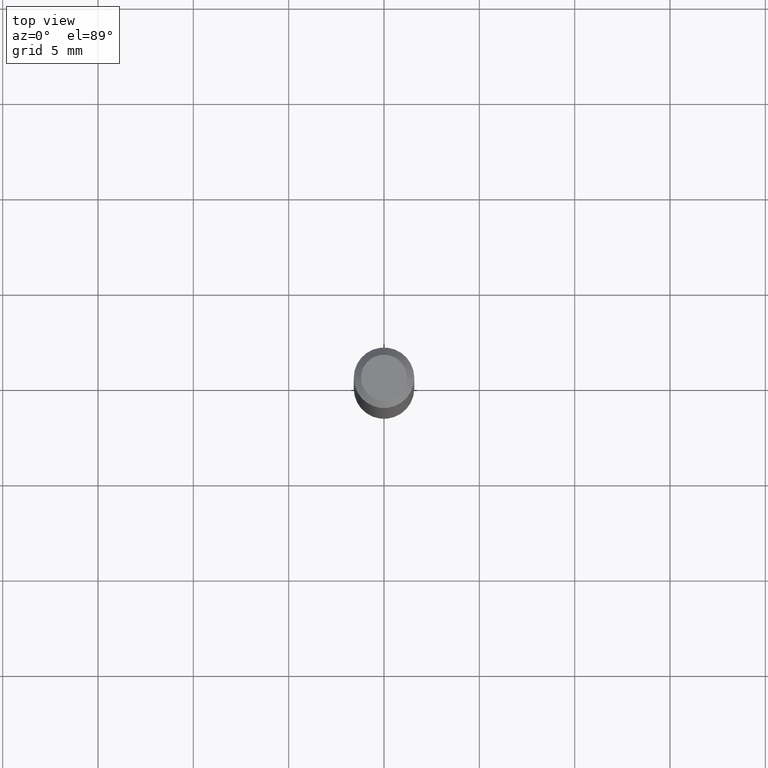
[diagram: clean part render]
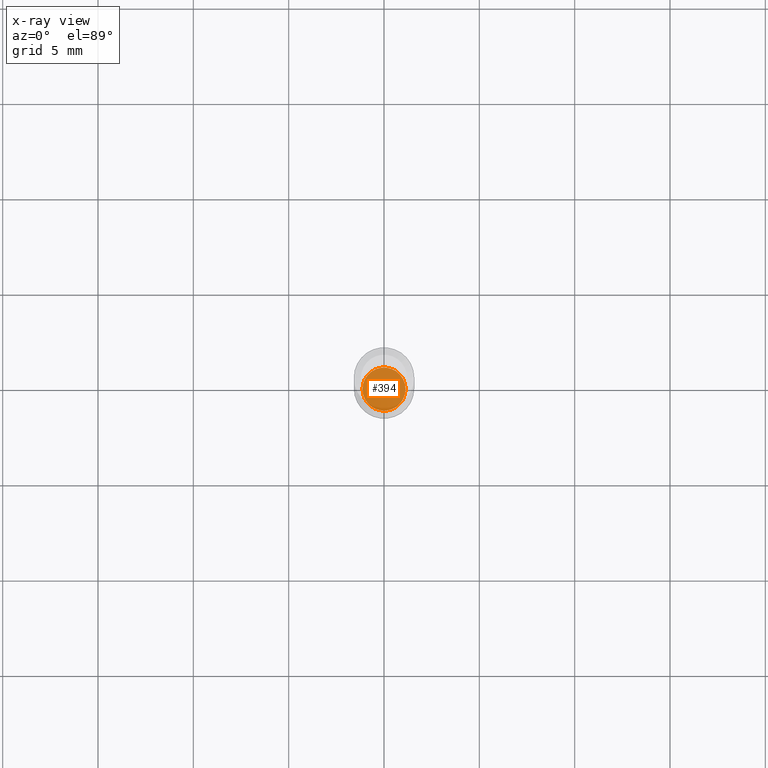
[diagram: x-ray — body ghosted, one internal face saturated and labeled with its STEP entity id]
A machine part, top view, then the same camera in x-ray: the body is ghosted and one INTERNAL B-rep face — a face not visible from any outside direction — is saturated and labeled: STEP entity #394.
In plain terms, the highlighted planar face has unit normal (-0, 0, 1).
Its self-contained STEP definition (entity closure, byte-faithful):
#39 = FACE_OUTER_BOUND ( 'NONE', #385, .T. ) ;
#50 = DIRECTION ( 'NONE',  ( 1.000000000000000000, -6.982962677686265922E-15, 4.876176775795935793E-29 ) ) ;
#104 = DIRECTION ( 'NONE',  ( -2.445468806185136597E-29, 3.491481338843145583E-15, 1.000000000000000000 ) ) ;
#109 = CARTESIAN_POINT ( 'NONE',  ( -0.04450000000000001177, -4.447031282933537610E-15, -1.364999999999999991 ) ) ;
#121 = EDGE_CURVE ( 'NONE', #156, #193, #506, .T. ) ;
#131 = CIRCLE ( 'NONE', #443, 0.04450000000000001177 ) ;
#136 = EDGE_CURVE ( 'NONE', #193, #156, #131, .T. ) ;
#156 = VERTEX_POINT ( 'NONE', #158 ) ;
#158 = CARTESIAN_POINT ( 'NONE',  ( 0.04450000000000001177, -5.076613866677932749E-15, -1.364999999999999991 ) ) ;
#172 = DIRECTION ( 'NONE',  ( -2.438088387897960049E-29, 3.491481338843145188E-15, 1.000000000000000000 ) ) ;
#188 = DIRECTION ( 'NONE',  ( -2.445468806185136597E-29, 3.491481338843145583E-15, 1.000000000000000000 ) ) ;
#193 = VERTEX_POINT ( 'NONE', #109 ) ;
#221 = DIRECTION ( 'NONE',  ( 1.000000000000000000, -6.982962677686276177E-15, 0.000000000000000000 ) ) ;
#271 = CARTESIAN_POINT ( 'NONE',  ( 3.338064920442711836E-29, -4.765872027520893280E-15, -1.364999999999999991 ) ) ;
#276 = ORIENTED_EDGE ( 'NONE', *, *, #136, .F. ) ;
#346 = DIRECTION ( 'NONE',  ( 1.000000000000000000, -6.982962677686276177E-15, 0.000000000000000000 ) ) ;
#385 = EDGE_LOOP ( 'NONE', ( #457, #276 ) ) ;
#394 = ADVANCED_FACE ( 'NONE', ( #39 ), #480, .F. ) ;
#415 = AXIS2_PLACEMENT_3D ( 'NONE', #271, #104, #346 ) ;
#443 = AXIS2_PLACEMENT_3D ( 'NONE', #462, #188, #221 ) ;
#457 = ORIENTED_EDGE ( 'NONE', *, *, #121, .F. ) ;
#462 = CARTESIAN_POINT ( 'NONE',  ( 3.338064920442711836E-29, -4.765872027520893280E-15, -1.364999999999999991 ) ) ;
#474 = CARTESIAN_POINT ( 'NONE',  ( 3.338064920442711836E-29, -4.765872027520893280E-15, -1.364999999999999991 ) ) ;
#480 = PLANE ( 'NONE',  #517 ) ;
#506 = CIRCLE ( 'NONE', #415, 0.04450000000000001177 ) ;
#517 = AXIS2_PLACEMENT_3D ( 'NONE', #474, #172, #50 ) ;